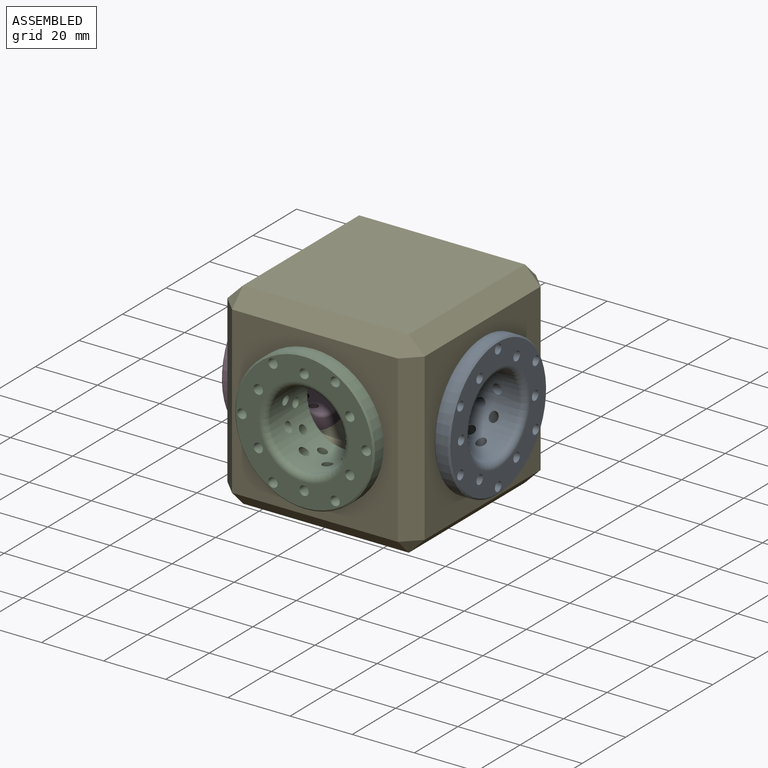
[diagram: assembled view]
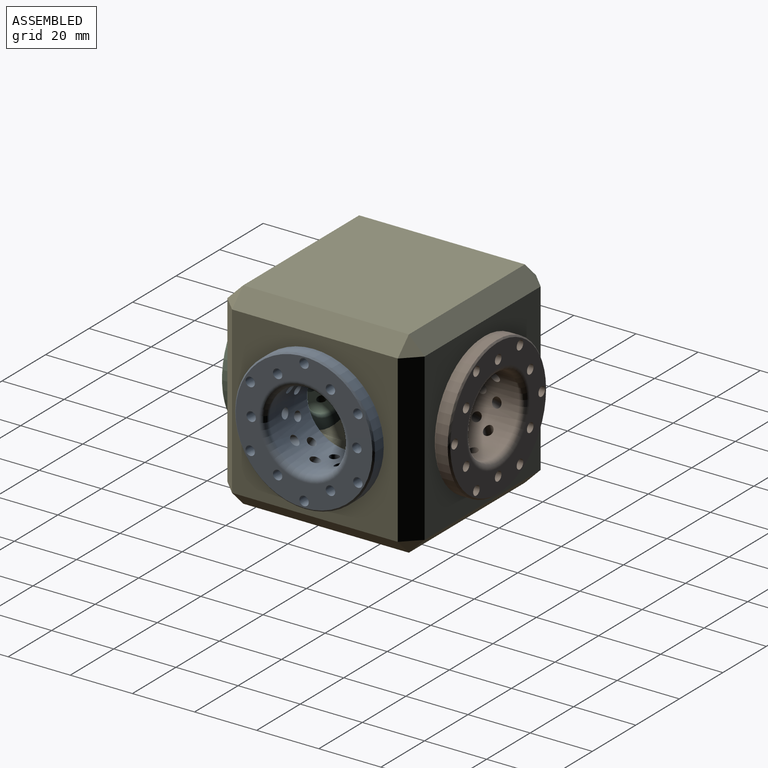
[diagram: assembled view, second angle]
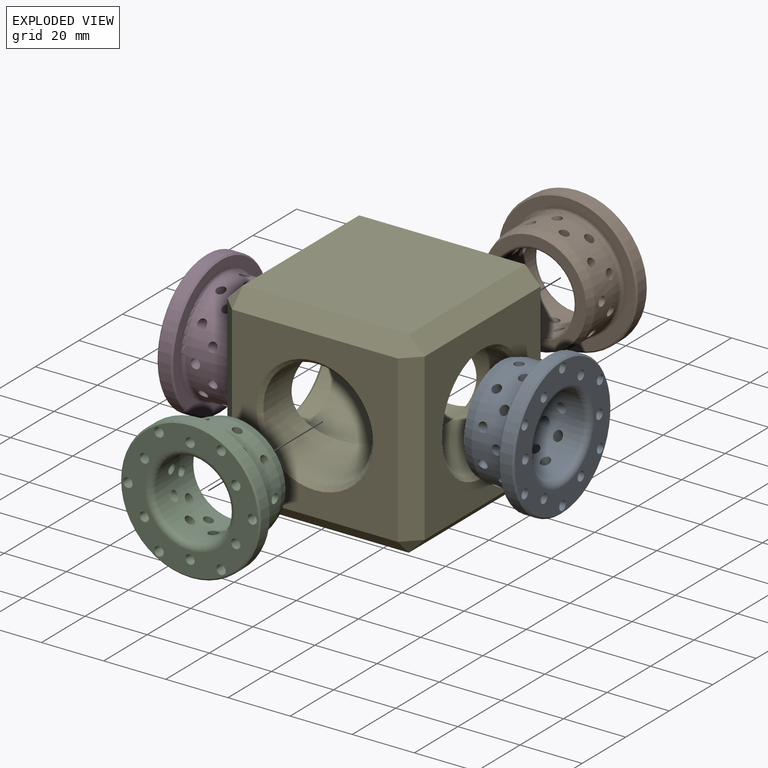
[diagram: exploded view]
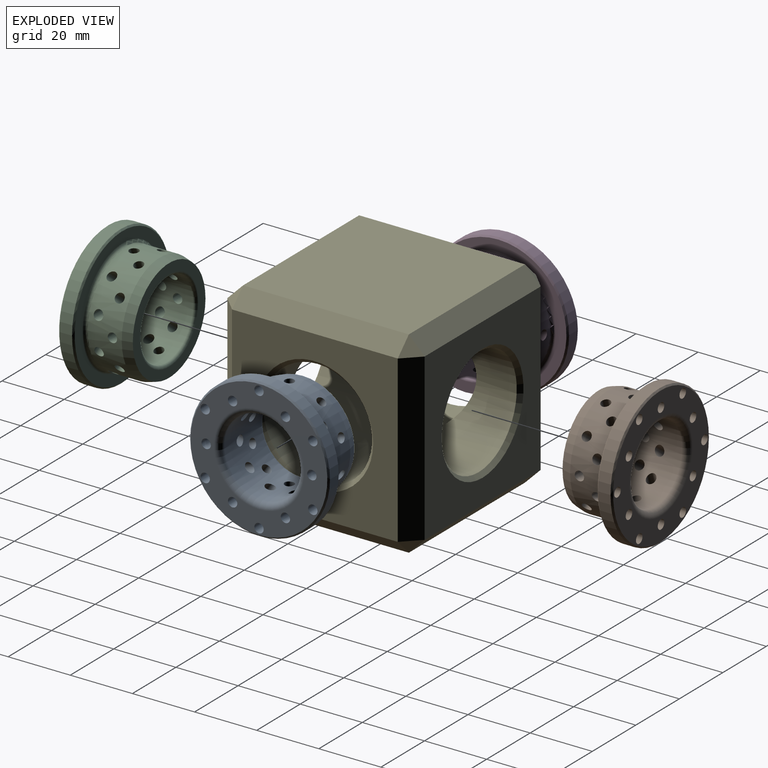
[diagram: exploded view, second angle]
ASSEMBLY  parts=5 mates=4
PART A: 56 faces, bbox 20x45x45 mm
  f0: cylinder r=12.5mm len=25mm, axis (-1,0,0), area 1187.6mm2, adj f6,f8,f36,f37,f38,f39,f40,f41
  f1: cylinder r=17.5mm len=35mm, axis (-1,0,0), area 1066.7mm2, adj f7,f11,f36,f37,f38,f39,f40,f41
  f2: plane 33.4x33.4mm, normal (1,0,0), area 303.7mm2, adj f6,f11
  f3: cylinder r=22.5mm len=45mm, axis (1,0,0), area 565.5mm2, adj f9,f10
  f4: plane 44x44mm, normal (-1,0,0), area 775.2mm2, adj f8,f10,f12,f14,f16,f18,f20,f22
  f5: plane 44x44mm, normal (1,0,0), area 445.3mm2, adj f7,f9
  f6: torus R=13.5mm, axis (-1,0,0), area 127mm2, adj f0,f2
  f7: torus R=18.5mm, axis (-1,0,0), area 176.3mm2, adj f1,f5
  f8: torus R=14.5mm, axis (-1,0,0), area 261.1mm2, adj f0,f4
  f9: cone r=22.5mm half-angle=45deg, axis (-1,0,0), area 98.9mm2, adj f3,f5
  f10: cone r=22mm half-angle=45deg, axis (1,0,0), area 98.9mm2, adj f3,f4
  f11: cone r=17.5mm half-angle=14.9deg, axis (-1,0,0), area 333.6mm2, adj f1,f2
  f12: cylinder r=1.5mm len=4mm, axis (-1,0,0), area 37.7mm2, adj f4,f13
  f13: plane 3x3mm, normal (-1,0,0), area 7.1mm2, adj f12
  f14: cylinder r=1.5mm len=4mm, axis (-1,0,0), area 37.7mm2, adj f4,f15
  f15: plane 3x3mm, normal (-1,0,0), area 7.1mm2, adj f14
  f16: cylinder r=1.5mm len=4mm, axis (-1,0,0), area 37.7mm2, adj f4,f17
  f17: plane 3x3mm, normal (-1,0,0), area 7.1mm2, adj f16
  f18: cylinder r=1.5mm len=4mm, axis (-1,0,0), area 37.7mm2, adj f4,f19
  f19: plane 3x3mm, normal (-1,0,0), area 7.1mm2, adj f18
  f20: cylinder r=1.5mm len=4mm, axis (-1,0,0), area 37.7mm2, adj f4,f21
  f21: plane 3x3mm, normal (-1,0,0), area 7.1mm2, adj f20
  f22: cylinder r=1.5mm len=4mm, axis (-1,0,0), area 37.7mm2, adj f4,f23
  f23: plane 3x3mm, normal (-1,0,0), area 7.1mm2, adj f22
  f24: cylinder r=1.5mm len=4mm, axis (-1,0,0), area 37.7mm2, adj f4,f25
  f25: plane 3x3mm, normal (-1,0,0), area 7.1mm2, adj f24
  f26: cylinder r=1.5mm len=4mm, axis (-1,0,0), area 37.7mm2, adj f4,f27
  f27: plane 3x3mm, normal (-1,0,0), area 7.1mm2, adj f26
  f28: cylinder r=1.5mm len=4mm, axis (-1,0,0), area 37.7mm2, adj f4,f29
  f29: plane 3x3mm, normal (-1,0,0), area 7.1mm2, adj f28
  f30: cylinder r=1.5mm len=4mm, axis (-1,0,0), area 37.7mm2, adj f4,f31
  f31: plane 3x3mm, normal (-1,0,0), area 7.1mm2, adj f30
  f32: cylinder r=1.5mm len=4mm, axis (-1,0,0), area 37.7mm2, adj f4,f33
  f33: plane 3x3mm, normal (-1,0,0), area 7.1mm2, adj f32
  f34: cylinder r=1.5mm len=4mm, axis (-1,0,0), area 37.7mm2, adj f4,f35
  f35: plane 3x3mm, normal (-1,0,0), area 7.1mm2, adj f34
  f36: cylinder r=1.5mm len=6.47mm, axis (0,0,1), area 50.3mm2, adj f0,f1
  f37: cylinder r=1.5mm len=5.09mm, axis (0,0,1), area 47.3mm2, adj f0,f1
  f38: cylinder r=1.5mm len=7mm, axis (0,-0.59,0.81), area 50.3mm2, adj f0,f1
  f39: cylinder r=1.5mm len=5.88mm, axis (0,-0.59,0.81), area 47.3mm2, adj f0,f1
  f40: cylinder r=1.5mm len=7.08mm, axis (0,-0.95,0.31), area 50.3mm2, adj f0,f1
  f41: cylinder r=1.5mm len=5.77mm, axis (0,-0.95,0.31), area 47.3mm2, adj f0,f1
  f42: cylinder r=1.5mm len=7.08mm, axis (0,-0.95,-0.31), area 50.3mm2, adj f0,f1
  f43: cylinder r=1.5mm len=5.77mm, axis (0,-0.95,-0.31), area 47.3mm2, adj f0,f1
  f44: cylinder r=1.5mm len=7mm, axis (0,-0.59,-0.81), area 50.3mm2, adj f0,f1
  f45: cylinder r=1.5mm len=5.88mm, axis (0,-0.59,-0.81), area 47.3mm2, adj f0,f1
  f46: cylinder r=1.5mm len=6.47mm, axis (0,0,-1), area 50.3mm2, adj f0,f1
  f47: cylinder r=1.5mm len=5.09mm, axis (0,0,-1), area 47.3mm2, adj f0,f1
  f48: cylinder r=1.5mm len=7mm, axis (0,0.59,-0.81), area 50.3mm2, adj f0,f1
  f49: cylinder r=1.5mm len=5.88mm, axis (0,0.59,-0.81), area 47.3mm2, adj f0,f1
  f50: cylinder r=1.5mm len=7.08mm, axis (0,0.95,-0.31), area 50.3mm2, adj f0,f1
  f51: cylinder r=1.5mm len=5.77mm, axis (0,0.95,-0.31), area 47.3mm2, adj f0,f1
  f52: cylinder r=1.5mm len=7.08mm, axis (0,0.95,0.31), area 50.3mm2, adj f0,f1
  f53: cylinder r=1.5mm len=5.77mm, axis (0,0.95,0.31), area 47.3mm2, adj f0,f1
  f54: cylinder r=1.5mm len=7mm, axis (0,0.59,0.81), area 50.3mm2, adj f0,f1
  f55: cylinder r=1.5mm len=5.88mm, axis (0,0.59,0.81), area 47.3mm2, adj f0,f1
PART B: same geometry as A
PART C: same geometry as A
PART D: same geometry as A
PART E: 34 faces, bbox 63.5x63.5x63.5 mm
  f0: cylinder r=17.5mm len=35mm, axis (0,-1,0), area 2126.5mm2, adj f8,f9,f31
  f1: cylinder r=17.5mm len=35mm, axis (0,-1,0), area 2126.5mm2, adj f8,f9,f33
  f2: plane 53.34x53.34mm, normal (1,0,0), area 1738.3mm2, adj f18,f23,f26,f29,f32
  f3: plane 53.34x53.34mm, normal (0,1,0), area 1738.3mm2, adj f15,f24,f25,f29,f31
  f4: plane 53.34x53.34mm, normal (-1,0,0), area 1738.3mm2, adj f10,f14,f15,f16,f30
  f5: plane 53.34x53.34mm, normal (0,-1,0), area 1738.3mm2, adj f10,f13,f17,f18,f33
  f6: plane 53.34x53.34mm, normal (0,0,1), area 2845.2mm2, adj f13,f14,f23,f24
  f7: plane 53.34x53.34mm, normal (0,0,-1), area 2845.2mm2, adj f16,f17,f25,f26
  f8: cylinder r=17.5mm len=35mm, axis (-1,0,0), area 2126.5mm2, adj f0,f1,f32
  f9: cylinder r=17.5mm len=35mm, axis (-1,0,0), area 2126.5mm2, adj f0,f1,f30
  f10: plane 53.34x5.08mm, normal (-0.71,-0.71,0), area 383.2mm2, adj f4,f5,f11,f12
  f11: plane 5.08x5.08mm, normal (-0.58,-0.58,0.58), area 22.3mm2, adj f10,f13,f14
  f12: plane 5.08x5.08mm, normal (-0.58,-0.58,-0.58), area 22.3mm2, adj f10,f16,f17
  f13: plane 53.34x5.08mm, normal (0,-0.71,0.71), area 383.2mm2, adj f5,f6,f11,f19
  f14: plane 53.34x5.08mm, normal (-0.71,0,0.71), area 383.2mm2, adj f4,f6,f11,f20
  f15: plane 53.34x5.08mm, normal (-0.71,0.71,0), area 383.2mm2, adj f3,f4,f20,f21
  f16: plane 53.34x5.08mm, normal (-0.71,0,-0.71), area 383.2mm2, adj f4,f7,f12,f21
  f17: plane 53.34x5.08mm, normal (0,-0.71,-0.71), area 383.2mm2, adj f5,f7,f12,f22
  f18: plane 53.34x5.08mm, normal (0.71,-0.71,0), area 383.2mm2, adj f2,f5,f19,f22
  f19: plane 5.08x5.08mm, normal (0.58,-0.58,0.58), area 22.3mm2, adj f13,f18,f23
  f20: plane 5.08x5.08mm, normal (-0.58,0.58,0.58), area 22.3mm2, adj f14,f15,f24
  f21: plane 5.08x5.08mm, normal (-0.58,0.58,-0.58), area 22.3mm2, adj f15,f16,f25
  f22: plane 5.08x5.08mm, normal (0.58,-0.58,-0.58), area 22.3mm2, adj f17,f18,f26
  f23: plane 53.34x5.08mm, normal (0.71,0,0.71), area 383.2mm2, adj f2,f6,f19,f27
  f24: plane 53.34x5.08mm, normal (0,0.71,0.71), area 383.2mm2, adj f3,f6,f20,f27
  f25: plane 53.34x5.08mm, normal (0,0.71,-0.71), area 383.2mm2, adj f3,f7,f21,f28
  f26: plane 53.34x5.08mm, normal (0.71,0,-0.71), area 383.2mm2, adj f2,f7,f22,f28
  f27: plane 5.08x5.08mm, normal (0.58,0.58,0.58), area 22.3mm2, adj f23,f24,f29
  f28: plane 5.08x5.08mm, normal (0.58,0.58,-0.58), area 22.3mm2, adj f25,f26,f29
  f29: plane 53.34x5.08mm, normal (0.71,0.71,0), area 383.2mm2, adj f2,f3,f27,f28
  f30: cone r=18.77mm half-angle=45deg, axis (-1,0,0), area 204.7mm2, adj f4,f9
  f31: cone r=18.77mm half-angle=45deg, axis (0,1,0), area 204.7mm2, adj f0,f3
  f32: cone r=17.5mm half-angle=45deg, axis (1,0,0), area 204.7mm2, adj f2,f8
  f33: cone r=17.5mm half-angle=45deg, axis (0,-1,0), area 204.7mm2, adj f1,f5
PLACE A rot(axis=(0,1,0),180deg) t=(42.77,24.9,-31.12)mm
PLACE B rot(axis=(0.58,-0.58,-0.58),120deg) t=(42.77,24.9,-31.12)mm
PLACE C rot(axis=(-0.58,-0.58,0.58),120deg) t=(42.77,24.9,-31.12)mm
PLACE D t=(42.77,24.9,-31.12)mm
PLACE E t=(42.77,24.9,-31.12)mm
MATE fastened D.f0 <-> E.f8  axis (1,0,0) through (11.02,24.9,-31.12)mm
MATE fastened A.f0 <-> E.f8  axis (-1,0,0) through (74.52,24.9,-31.12)mm
MATE fastened C.f0 <-> E.f0  axis (0,1,0) through (42.77,-6.85,-31.12)mm
MATE fastened B.f0 <-> E.f0  axis (0,-1,0) through (42.77,56.65,-31.12)mm
